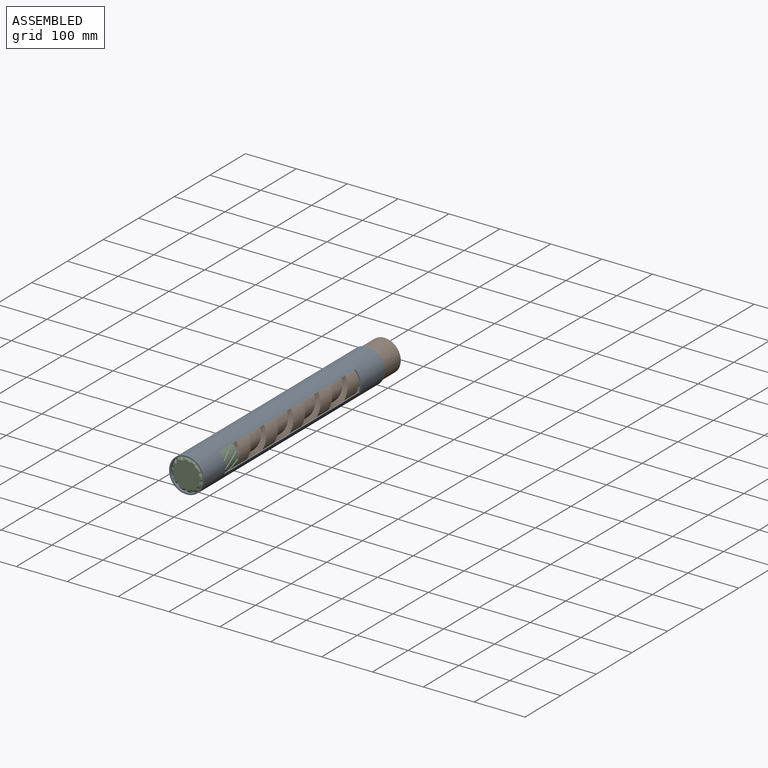
[diagram: assembled view]
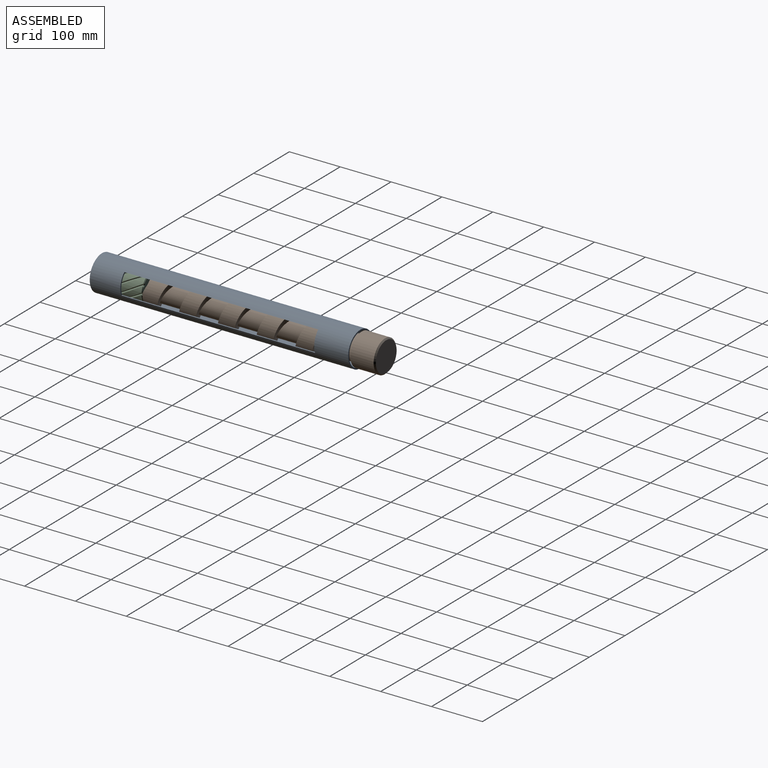
[diagram: assembled view, second angle]
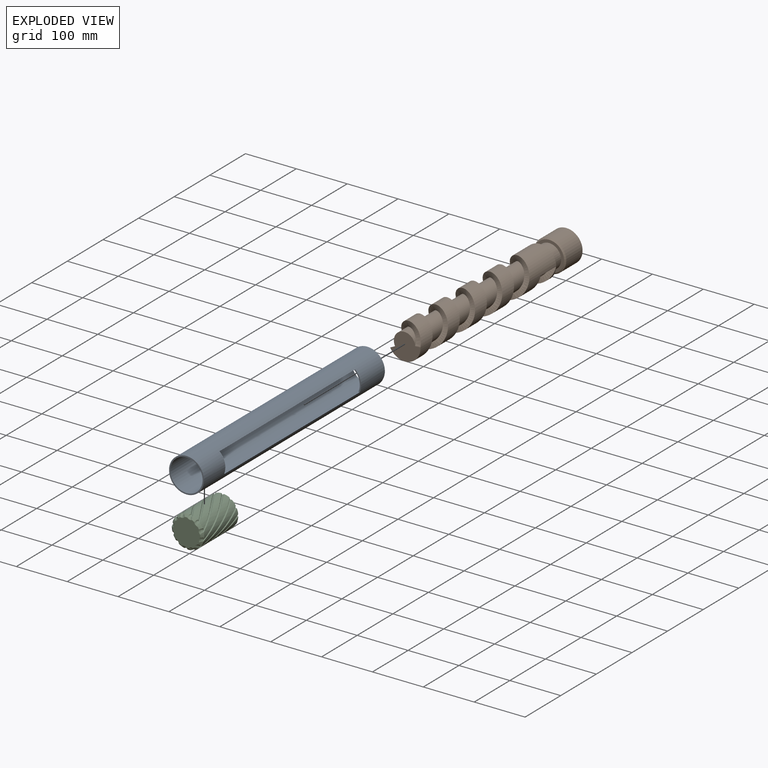
[diagram: exploded view]
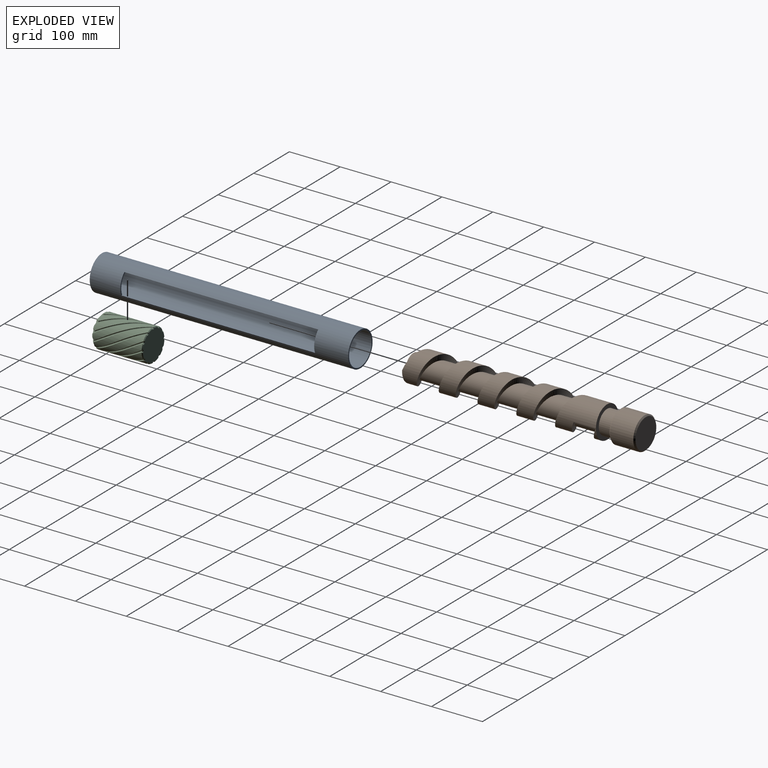
[diagram: exploded view, second angle]
ASSEMBLY  parts=3 mates=2
PART A: 8 faces, bbox 68.6x508x68.6 mm
  f0: cylinder r=34.29mm len=508mm, axis (0,1,0), area 93568.4mm2, adj f1,f2,f4,f5,f6,f7
  f1: plane 68.58x68.58mm, normal (0,-1,0), area 527mm2, adj f0,f3
  f2: plane 68.58x68.58mm, normal (0,1,0), area 527mm2, adj f0,f3
  f3: cylinder r=31.75mm len=508mm, axis (0,1,0), area 85110.4mm2, adj f1,f2,f4,f5,f6,f7
  f4: plane 381x4.02mm, normal (0,0,-1), area 1532.9mm2, adj f0,f3,f5,f7
  f5: plane 38.1x15.46mm, normal (0,1,0), area 107mm2, adj f0,f3,f4,f6
  f6: plane 381x2.75mm, normal (0,0,1), area 1046.3mm2, adj f0,f3,f5,f7
  f7: plane 38.1x15.46mm, normal (0,-1,0), area 107mm2, adj f0,f3,f4,f6
PART B: 17 faces, bbox 67.1x457.9x68.8 mm
  f0: cylinder r=31.75mm len=63.5mm, axis (0,1,0), area 9121.2mm2, adj f4,f5
  f1: plane 58.42x58.42mm, normal (0,-1,0), area 951.8mm2, adj f3,f5
  f2: plane 58.42x58.42mm, normal (0,1,0), area 2680.8mm2, adj f4
  f3: cylinder r=23.46mm len=46.92mm, axis (0,1,0), area 3744mm2, adj f1,f12
  f4: cone r=31.75mm half-angle=45deg, axis (0,-1,0), area 688mm2, adj f0,f2
  f5: cone r=29.21mm half-angle=45deg, axis (0,1,0), area 688mm2, adj f0,f1
  f6: cylinder r=31.5mm len=152.4mm, axis (0,1,0), area 14150.8mm2, adj f7,f12,f13,f14,f15
  f7: cylinder r=31.5mm len=109.22mm, axis (0,1,0), area 6534.5mm2, adj f6,f8,f14,f15
  f8: cylinder r=31.5mm len=109.22mm, axis (0,1,0), area 6534.5mm2, adj f7,f9,f14,f15
  f9: cylinder r=31.5mm len=109.22mm, axis (0,1,0), area 6534.9mm2, adj f8,f10,f14,f15
  f10: cylinder r=31.5mm len=59.51mm, axis (0,1,0), area 1415.9mm2, adj f9,f11,f15
  f11: plane 59.51x52.35mm, normal (0,-1,0), area 2124.4mm2, adj f10,f14,f15,f16
  f12: plane 62.99x62.99mm, normal (0,1,0), area 1387.5mm2, adj f3,f6
  f13: plane 43.18x10.65mm, normal (0,0,-1), area 459.7mm2, adj f6,f14,f15,f16
  f14: bspline ~381x68.82mm, area 9637.8mm2, adj f6,f7,f8,f9,f11,f13,f16
  f15: bspline ~337.46x68.82mm, area 8546.3mm2, adj f6,f7,f8,f9,f10,f11,f13,f16
  f16: cylinder r=20.85mm len=380.32mm, axis (0,1,0), area 26565.6mm2, adj f11,f13,f14,f15
PART C: 74 faces, bbox 64.5x112.9x64.5 mm
  f0: plane 60.46x60.44mm, normal (0,1,0), area 2781.3mm2, adj f26,f27,f28,f29,f30,f31,f32,f33
  f1: cylinder r=31.75mm len=95.69mm, axis (0,1,0), area 1040.6mm2, adj f14,f25,f45,f47,f67,f69
  f2: cylinder r=31.75mm len=95.69mm, axis (0,1,0), area 1223mm2, adj f24,f25,f48,f49,f71,f73
  f3: cylinder r=31.75mm len=95.69mm, axis (0,1,0), area 1223mm2, adj f23,f24,f44,f46,f70,f72
  f4: cylinder r=31.75mm len=95.69mm, axis (0,1,0), area 1223mm2, adj f22,f23,f40,f42,f66,f68
  f5: cylinder r=31.75mm len=95.69mm, axis (0,1,0), area 1223mm2, adj f21,f22,f36,f38,f62,f64
  f6: cylinder r=31.75mm len=95.69mm, axis (0,1,0), area 1223mm2, adj f20,f21,f32,f34,f58,f60
  f7: cylinder r=31.75mm len=95.69mm, axis (0,1,0), area 1223mm2, adj f19,f20,f28,f30,f54,f56
  f8: cylinder r=31.75mm len=95.69mm, axis (0,1,0), area 1223mm2, adj f18,f19,f26,f27,f50,f52
  f9: cylinder r=31.75mm len=95.69mm, axis (0,1,0), area 1223mm2, adj f17,f18,f29,f31,f51,f53
  f10: cylinder r=31.75mm len=95.69mm, axis (0,1,0), area 1223mm2, adj f16,f17,f33,f35,f55,f57
  f11: cylinder r=31.75mm len=95.69mm, axis (0,1,0), area 1223mm2, adj f15,f16,f37,f39,f59,f61
  f12: cylinder r=31.75mm len=95.69mm, axis (0,1,0), area 1405.3mm2, adj f14,f15,f41,f43,f63,f65
  f13: plane 54.61x54.61mm, normal (0,-1,0), area 2197mm2, adj f50,f51,f52,f53,f54,f55,f56,f57
  f14: bspline ~112.89x42.23mm, area 609.9mm2, adj f1,f12,f43,f45,f65,f67
  f15: bspline ~112.89x55.56mm, area 604.9mm2, adj f11,f12,f39,f41,f61,f63
  f16: bspline ~112.89x54.02mm, area 604.9mm2, adj f10,f11,f35,f37,f57,f59
  f17: bspline ~112.89x43.62mm, area 604.9mm2, adj f9,f10,f31,f33,f53,f55
  f18: bspline ~112.89x55.56mm, area 604.9mm2, adj f8,f9,f27,f29,f50,f51
  f19: bspline ~112.89x54.02mm, area 604.9mm2, adj f7,f8,f26,f28,f52,f54
  f20: bspline ~112.89x43.62mm, area 604.9mm2, adj f6,f7,f30,f32,f56,f58
  f21: bspline ~112.89x55.56mm, area 604.9mm2, adj f5,f6,f34,f36,f60,f62
  f22: bspline ~112.89x54.02mm, area 604.9mm2, adj f4,f5,f38,f40,f64,f66
  f23: bspline ~112.89x43.62mm, area 604.9mm2, adj f3,f4,f42,f44,f68,f70
  f24: bspline ~112.89x55.56mm, area 604.9mm2, adj f2,f3,f46,f48,f72,f73
  f25: bspline ~112.89x54.02mm, area 604.9mm2, adj f1,f2,f47,f49,f69,f71
  f26: cone r=31.75mm half-angle=45deg, axis (0,-1,0), area 22.4mm2, adj f0,f8,f19,f27,f28
  f27: bspline ~6.57x4.47mm, area 14.6mm2, adj f0,f8,f18,f26,f29
  f28: bspline ~6.14x5.07mm, area 14.6mm2, adj f0,f7,f19,f26,f30
  f29: cone r=31.75mm half-angle=45deg, axis (0,-1,0), area 22.4mm2, adj f0,f9,f18,f27,f31
  f30: cone r=31.75mm half-angle=45deg, axis (0,-1,0), area 22.4mm2, adj f0,f7,f20,f28,f32
  f31: bspline ~7.06x3.25mm, area 14.6mm2, adj f0,f9,f17,f29,f33
  f32: bspline ~7.06x3.25mm, area 14.6mm2, adj f0,f6,f20,f30,f34
  f33: cone r=31.75mm half-angle=45deg, axis (0,-1,0), area 22.4mm2, adj f0,f10,f17,f31,f35
  f34: cone r=31.75mm half-angle=45deg, axis (0,-1,0), area 22.4mm2, adj f0,f6,f21,f32,f36
  f35: bspline ~6.14x5.07mm, area 14.6mm2, adj f0,f10,f16,f33,f37
  f36: bspline ~6.57x4.47mm, area 14.6mm2, adj f0,f5,f21,f34,f38
  f37: cone r=31.75mm half-angle=45deg, axis (0,-1,0), area 22.4mm2, adj f0,f11,f16,f35,f39
  f38: cone r=31.75mm half-angle=45deg, axis (0,-1,0), area 22.4mm2, adj f0,f5,f22,f36,f40
  f39: bspline ~6.57x4.47mm, area 14.6mm2, adj f0,f11,f15,f37,f41
  f40: bspline ~6.14x5.07mm, area 14.6mm2, adj f0,f4,f22,f38,f42
  f41: cone r=31.75mm half-angle=45deg, axis (0,-1,0), area 26.2mm2, adj f0,f12,f15,f39,f43
  f42: cone r=31.75mm half-angle=45deg, axis (0,-1,0), area 22.4mm2, adj f0,f4,f23,f40,f44
  f43: bspline ~7.03x3.82mm, area 14.7mm2, adj f0,f12,f14,f41,f45
  f44: bspline ~7.06x3.25mm, area 14.6mm2, adj f0,f3,f23,f42,f46
  f45: cone r=31.75mm half-angle=45deg, axis (0,-1,0), area 18.6mm2, adj f0,f1,f14,f43,f47
  f46: cone r=31.75mm half-angle=45deg, axis (0,-1,0), area 22.4mm2, adj f0,f3,f24,f44,f48
  f47: bspline ~6.14x5.07mm, area 14.6mm2, adj f0,f1,f25,f45,f49
  f48: bspline ~6.57x4.47mm, area 14.6mm2, adj f0,f2,f24,f46,f49
  f49: cone r=31.75mm half-angle=45deg, axis (0,-1,0), area 22.4mm2, adj f0,f2,f25,f47,f48
  f50: cone r=27.29mm half-angle=45deg, axis (0,1,0), area 50mm2, adj f8,f13,f18,f51,f52
  f51: bspline ~11.38x9.51mm, area 60mm2, adj f9,f13,f18,f50,f53
  f52: bspline ~13.59x6.72mm, area 60mm2, adj f8,f13,f19,f50,f54
  f53: cone r=27.29mm half-angle=45deg, axis (0,1,0), area 50mm2, adj f9,f13,f17,f51,f55
  f54: cone r=27.29mm half-angle=45deg, axis (0,1,0), area 50mm2, adj f7,f13,f19,f52,f56
  f55: bspline ~11.65x7.73mm, area 60mm2, adj f10,f13,f17,f53,f57
  f56: bspline ~11.65x7.73mm, area 60mm2, adj f7,f13,f20,f54,f58
  f57: cone r=27.29mm half-angle=45deg, axis (0,1,0), area 50mm2, adj f10,f13,f16,f55,f59
  f58: cone r=27.29mm half-angle=45deg, axis (0,1,0), area 50mm2, adj f6,f13,f20,f56,f60
  f59: bspline ~13.59x6.72mm, area 60mm2, adj f11,f13,f16,f57,f61
  f60: bspline ~11.38x9.51mm, area 60mm2, adj f6,f13,f21,f58,f62
  f61: cone r=27.29mm half-angle=45deg, axis (0,1,0), area 50mm2, adj f11,f13,f15,f59,f63
  f62: cone r=27.29mm half-angle=45deg, axis (0,1,0), area 50mm2, adj f5,f13,f21,f60,f64
  f63: bspline ~11.38x9.51mm, area 60mm2, adj f12,f13,f15,f61,f65
  f64: bspline ~13.59x6.72mm, area 60mm2, adj f5,f13,f22,f62,f66
  f65: cone r=27.29mm half-angle=45deg, axis (0,1,0), area 61mm2, adj f12,f13,f14,f63,f67
  f66: cone r=27.29mm half-angle=45deg, axis (0,1,0), area 50mm2, adj f4,f13,f22,f64,f68
  f67: bspline ~12.05x7.43mm, area 60.4mm2, adj f1,f13,f14,f65,f69
  f68: bspline ~11.65x7.73mm, area 60mm2, adj f4,f13,f23,f66,f70
  f69: cone r=27.29mm half-angle=45deg, axis (0,1,0), area 38.7mm2, adj f1,f13,f25,f67,f71
  f70: cone r=27.29mm half-angle=45deg, axis (0,1,0), area 50mm2, adj f3,f13,f23,f68,f72
  f71: bspline ~13.59x6.72mm, area 60mm2, adj f2,f13,f25,f69,f73
  f72: bspline ~11.38x9.51mm, area 60mm2, adj f3,f13,f24,f70,f73
  f73: cone r=27.29mm half-angle=45deg, axis (0,1,0), area 50mm2, adj f2,f13,f24,f71,f72
PLACE A at identity
PLACE B t=(0,50.8,0)mm
PLACE C t=(0,50.8,0)mm
MATE revolute C.f1 <-> A.f0  axis (0,-1,0) through (0,-508,0)mm
MATE fastened C.f1 <-> B.f6  axis (0,1,0) through (0,-406.4,0)mm
